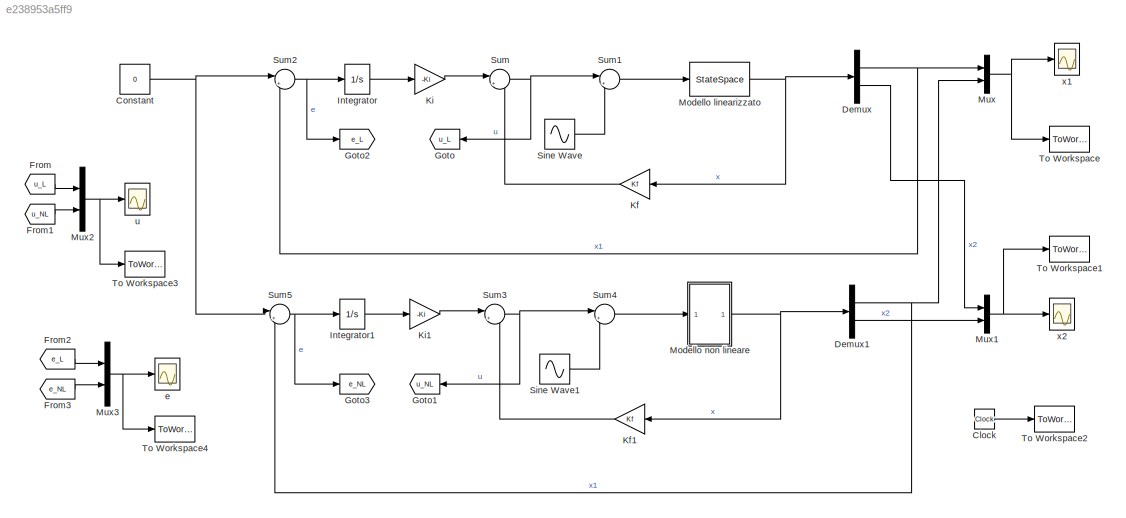
MODEL slx_e238953a5ff9
KIND model
CONFIG AbsTol = auto
CONFIG EnableMultiTasking = off
CONFIG FixedStep = auto
CONFIG InitFcn = clear\nclc\n%% dati\nw0 = 5.278;\nalfa1 = w0^2;\nalfa3 = -1.402*w0^2;\nalfa5 = 0.271*w0^2;\nmu1 = 0.086;\nmu3 = 0.1080;\n%% matrici del sistema\nA = [0 1; -alfa1 -2*mu1];\nB = [0; 1];\nC = [1 0];\nD = [0; 0];\n%% matrici sistema aumentato a causa dell'aggiunta dell'azione integrale\nn = 2; % ordine del sistema\np = 1; % numero di uscite\nAg = [A zeros(n,p); -C 0];\nBg = [B; 0];\nAi=[A B; -C zeros(p,p)];\nif rank(Ai)=...<+359ch>
CONFIG MaxStep = 1e-3
CONFIG MinStep = auto
CONFIG RelTol = 1e-3
CONFIG SampleTimeConstraint = Unconstrained
CONFIG SolverName = VariableStepAuto
CONFIG StartTime = 0.0
CONFIG StopTime = 25
BLOCK [Clock] Clock
BLOCK [Constant] Constant
  Value = 0
BLOCK [Demux] Demux
  Outputs = 2
  Ports = [1, 2]
BLOCK [Demux] Demux1
  Outputs = 2
  Ports = [1, 2]
BLOCK [From] From
  GotoTag = u_L
  NameLocation = top
BLOCK [From] From1
  GotoTag = u_NL
  NameLocation = top
BLOCK [From] From2
  GotoTag = e_L
BLOCK [From] From3
  GotoTag = e_NL
BLOCK [Goto] Goto
  GotoTag = u_L
  NameLocation = top
BLOCK [Goto] Goto1
  GotoTag = u_NL
  NameLocation = top
BLOCK [Goto] Goto2
  GotoTag = e_L
BLOCK [Goto] Goto3
  GotoTag = e_NL
BLOCK [Integrator] Integrator
  Ports = [1, 1]
BLOCK [Integrator] Integrator1
  Ports = [1, 1]
BLOCK [Gain] Kf
  Gain = Kf
  Multiplication = Matrix(K*u)
BLOCK [Gain] Kf1
  Gain = Kf
  Multiplication = Matrix(K*u)
BLOCK [Gain] Ki
  Gain = -Ki
BLOCK [Gain] Ki1
  Gain = -Ki
BLOCK [StateSpace] Modello linearizzato
  A = A
  B = B
  C = eye(2);
  D = D
  InitialCondition = [-1.2, -0.18]
  Ports = [1, 1]
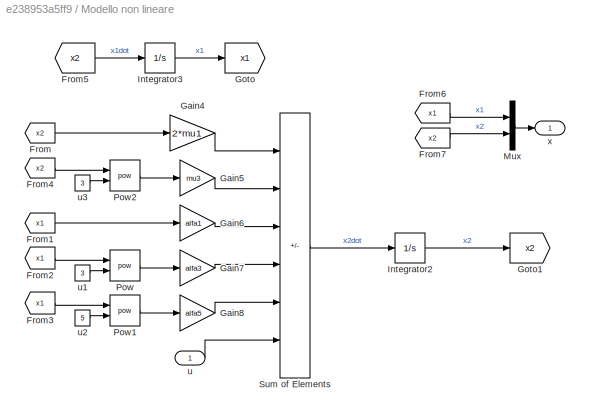
BLOCK [SubSystem] Modello non lineare
  Ports = [1, 1]
  RequestExecContextInheritance = off
BLOCK [From] Modello non lineare/From
  GotoTag = x2
BLOCK [From] Modello non lineare/From1
  GotoTag = x1
BLOCK [From] Modello non lineare/From2
  GotoTag = x1
BLOCK [From] Modello non lineare/From3
  GotoTag = x1
BLOCK [From] Modello non lineare/From4
  GotoTag = x2
BLOCK [From] Modello non lineare/From5
  GotoTag = x2
BLOCK [From] Modello non lineare/From6
  GotoTag = x1
BLOCK [From] Modello non lineare/From7
  GotoTag = x2
BLOCK [Gain] Modello non lineare/Gain4
  Gain = 2*mu1
BLOCK [Gain] Modello non lineare/Gain5
  Gain = mu3
BLOCK [Gain] Modello non lineare/Gain6
  Gain = alfa1
BLOCK [Gain] Modello non lineare/Gain7
  Gain = alfa3
BLOCK [Gain] Modello non lineare/Gain8
  Gain = alfa5
BLOCK [Goto] Modello non lineare/Goto
  GotoTag = x1
BLOCK [Goto] Modello non lineare/Goto1
  GotoTag = x2
BLOCK [Integrator] Modello non lineare/Integrator2
  InitialCondition = -0.18
  Ports = [1, 1]
BLOCK [Integrator] Modello non lineare/Integrator3
  InitialCondition = -1.2
  Ports = [1, 1]
BLOCK [Mux] Modello non lineare/Mux
  DisplayOption = bar
  Inputs = 2
  Ports = [2, 1]
BLOCK [Math] Modello non lineare/Pow
  Operator = pow
  Ports = [2, 1]
  RndMeth = Zero
BLOCK [Math] Modello non lineare/Pow1
  Operator = pow
  Ports = [2, 1]
  RndMeth = Zero
BLOCK [Math] Modello non lineare/Pow2
  Operator = pow
  Ports = [2, 1]
  RndMeth = Zero
BLOCK [Sum] Modello non lineare/Sum of Elements
  IconShape = rectangular
  Inputs = -----+
  Ports = [6, 1]
BLOCK [Inport] Modello non lineare/u
BLOCK [Constant] Modello non lineare/u1
  Value = 3
BLOCK [Constant] Modello non lineare/u2
  Value = 5
BLOCK [Constant] Modello non lineare/u3
  Value = 3
BLOCK [Outport] Modello non lineare/x
BLOCK [Mux] Mux
  DisplayOption = bar
  Inputs = 2
  Ports = [2, 1]
BLOCK [Mux] Mux1
  DisplayOption = bar
  Inputs = 2
  Ports = [2, 1]
BLOCK [Mux] Mux2
  DisplayOption = bar
  Inputs = 2
  Ports = [2, 1]
BLOCK [Mux] Mux3
  DisplayOption = bar
  Inputs = 2
  Ports = [2, 1]
BLOCK [Sin] Sine Wave
  Amplitude = Ad
  Frequency = fd
  Ports = [0, 1]
  SampleTime = 0
BLOCK [Sin] Sine Wave1
  Amplitude = Ad
  Frequency = fd
  Ports = [0, 1]
  SampleTime = 0
BLOCK [Sum] Sum
  Inputs = |+-
  Ports = [2, 1]
BLOCK [Sum] Sum1
  Inputs = |++
  Ports = [2, 1]
BLOCK [Sum] Sum2
  Inputs = |+-
  Ports = [2, 1]
BLOCK [Sum] Sum3
  Inputs = |+-
  Ports = [2, 1]
BLOCK [Sum] Sum4
  Inputs = |++
  Ports = [2, 1]
BLOCK [Sum] Sum5
  Inputs = |+-
  Ports = [2, 1]
BLOCK [ToWorkspace] To Workspace
  FixptAsFi = on
  MaxDataPoints = inf
  Ports = [1]
  SampleTime = -1
  Save2DSignal = 2-D array (concatenate along first dimension)
  VariableName = x1
BLOCK [ToWorkspace] To Workspace1
  FixptAsFi = on
  MaxDataPoints = inf
  Ports = [1]
  SampleTime = -1
  Save2DSignal = 2-D array (concatenate along first dimension)
  VariableName = x2
BLOCK [ToWorkspace] To Workspace2
  FixptAsFi = on
  MaxDataPoints = inf
  Ports = [1]
  SampleTime = -1
  Save2DSignal = 2-D array (concatenate along first dimension)
  VariableName = t
BLOCK [ToWorkspace] To Workspace3
  FixptAsFi = on
  MaxDataPoints = inf
  Ports = [1]
  SampleTime = -1
  Save2DSignal = 2-D array (concatenate along first dimension)
  VariableName = u
BLOCK [ToWorkspace] To Workspace4
  FixptAsFi = on
  MaxDataPoints = inf
  Ports = [1]
  SampleTime = -1
  Save2DSignal = 2-D array (concatenate along first dimension)
  VariableName = e
BLOCK [Scope] e
  Floating = off
  NumInputPorts = 1
  Ports = [1]
  ScopeSpecificationString = Simulink.scopes.TimeScopeBlockCfg('CurrentConfiguration', extmgr.ConfigurationSet(extmgr.Configuration('Core','General UI',true),extmgr.Configuration('Core','Source UI',true),extmgr.Configuration('Sources','WiredSimulink',true,'DataLoggingVariableName','ScopeData3'),extmgr.Configuration('Visuals','Time Domain',true,'SerializedDisplays',{struct('MinYLimReal','-2.7129','MaxYLimReal','2.7129','YLabel...<+1435ch>
BLOCK [Scope] u
  Floating = off
  NumInputPorts = 1
  Ports = [1]
  ScopeSpecificationString = Simulink.scopes.TimeScopeBlockCfg('CurrentConfiguration', extmgr.ConfigurationSet(extmgr.Configuration('Core','General UI',true),extmgr.Configuration('Core','Source UI',true),extmgr.Configuration('Sources','WiredSimulink',true,'DataLoggingVariableName','ScopeData2'),extmgr.Configuration('Visuals','Time Domain',true,'SerializedDisplays',{struct('MinYLimReal','-33.81867','MaxYLimReal','24.79352','YL...<+1447ch>
BLOCK [Scope] x1
  Floating = off
  NumInputPorts = 1
  Ports = [1]
  ScopeSpecificationString = Simulink.scopes.TimeScopeBlockCfg('CurrentConfiguration', extmgr.ConfigurationSet(extmgr.Configuration('Core','General UI',true),extmgr.Configuration('Core','Source UI',true),extmgr.Configuration('Sources','WiredSimulink',true),extmgr.Configuration('Visuals','Time Domain',true,'SerializedDisplays',{struct('MinYLimReal','-0.00281','MaxYLimReal','0.02187','YLabelReal','','MinYLimMag','0.00000','MaxY...<+1426ch>
BLOCK [Scope] x2
  Floating = off
  NumInputPorts = 1
  Ports = [1]
  ScopeSpecificationString = Simulink.scopes.TimeScopeBlockCfg('CurrentConfiguration', extmgr.ConfigurationSet(extmgr.Configuration('Core','General UI',true),extmgr.Configuration('Core','Source UI',true),extmgr.Configuration('Sources','WiredSimulink',true,'DataLoggingVariableName','ScopeData1'),extmgr.Configuration('Visuals','Time Domain',true,'SerializedDisplays',{struct('MinYLimReal','-3.42655','MaxYLimReal','3.42654','YLab...<+1439ch>
LINE Clock:1 -> To Workspace2:1
NET Constant:1 -> Sum2:1, Sum5:1
NET Demux1:1 -> Mux:2, Sum5:2
LINE Demux1:2 -> Mux1:2
NET Demux:1 -> Mux:1, Sum2:2
LINE Demux:2 -> Mux1:1
LINE From1:1 -> Mux2:2
LINE From2:1 -> Mux3:1
LINE From3:1 -> Mux3:2
LINE From:1 -> Mux2:1
LINE Integrator1:1 -> Ki1:1
LINE Integrator:1 -> Ki:1
LINE Kf1:1 -> Sum3:2
LINE Kf:1 -> Sum:2
LINE Ki1:1 -> Sum3:1
LINE Ki:1 -> Sum:1
NET Modello linearizzato:1 -> Demux:1, Kf:1
LINE Modello non lineare/From1:1 -> Modello non lineare/Gain6:1
LINE Modello non lineare/From2:1 -> Modello non lineare/Pow:1
LINE Modello non lineare/From3:1 -> Modello non lineare/Pow1:1
LINE Modello non lineare/From4:1 -> Modello non lineare/Pow2:1
LINE Modello non lineare/From5:1 -> Modello non lineare/Integrator3:1
LINE Modello non lineare/From6:1 -> Modello non lineare/Mux:1
LINE Modello non lineare/From7:1 -> Modello non lineare/Mux:2
LINE Modello non lineare/From:1 -> Modello non lineare/Gain4:1
LINE Modello non lineare/Gain4:1 -> Modello non lineare/Sum of Elements:1
LINE Modello non lineare/Gain5:1 -> Modello non lineare/Sum of Elements:2
LINE Modello non lineare/Gain6:1 -> Modello non lineare/Sum of Elements:3
LINE Modello non lineare/Gain7:1 -> Modello non lineare/Sum of Elements:4
LINE Modello non lineare/Gain8:1 -> Modello non lineare/Sum of Elements:5
LINE Modello non lineare/Integrator2:1 -> Modello non lineare/Goto1:1
LINE Modello non lineare/Integrator3:1 -> Modello non lineare/Goto:1
LINE Modello non lineare/Mux:1 -> Modello non lineare/x:1
LINE Modello non lineare/Pow1:1 -> Modello non lineare/Gain8:1
LINE Modello non lineare/Pow2:1 -> Modello non lineare/Gain5:1
LINE Modello non lineare/Pow:1 -> Modello non lineare/Gain7:1
LINE Modello non lineare/Sum of Elements:1 -> Modello non lineare/Integrator2:1
LINE Modello non lineare/u1:1 -> Modello non lineare/Pow:2
LINE Modello non lineare/u2:1 -> Modello non lineare/Pow1:2
LINE Modello non lineare/u3:1 -> Modello non lineare/Pow2:2
LINE Modello non lineare/u:1 -> Modello non lineare/Sum of Elements:6
NET Modello non lineare:1 -> Demux1:1, Kf1:1
NET Mux1:1 -> To Workspace1:1, x2:1
NET Mux2:1 -> To Workspace3:1, u:1
NET Mux3:1 -> To Workspace4:1, e:1
NET Mux:1 -> To Workspace:1, x1:1
LINE Sine Wave1:1 -> Sum4:2
LINE Sine Wave:1 -> Sum1:2
LINE Sum1:1 -> Modello linearizzato:1
NET Sum2:1 -> Goto2:1, Integrator:1
NET Sum3:1 -> Goto1:1, Sum4:1
LINE Sum4:1 -> Modello non lineare:1
NET Sum5:1 -> Goto3:1, Integrator1:1
NET Sum:1 -> Goto:1, Sum1:1
note: NET lines group one-source signal fan-out (src -> all destinations, sorted); 1:1 wires keep LINE
